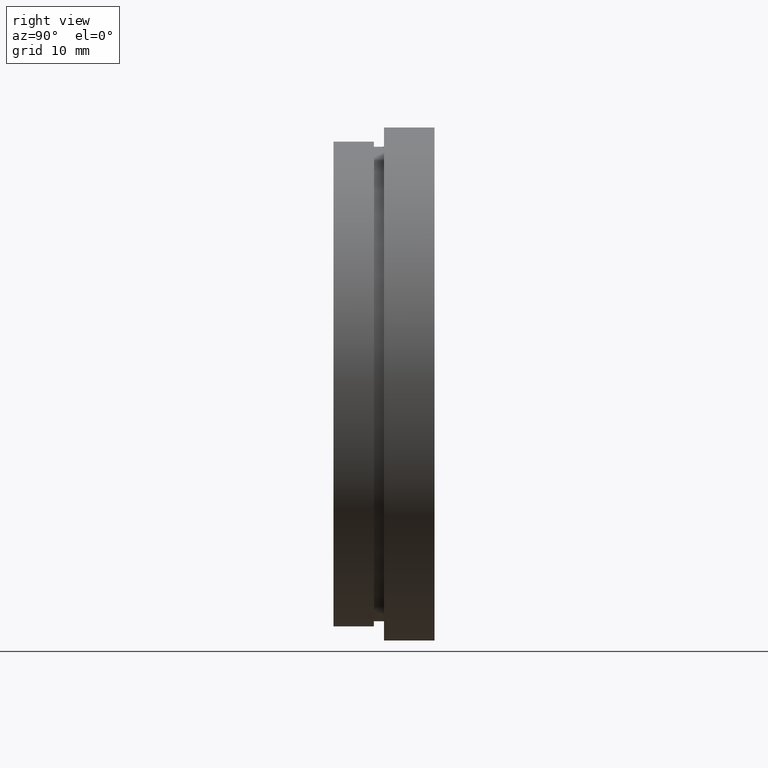
[diagram: clean part render]
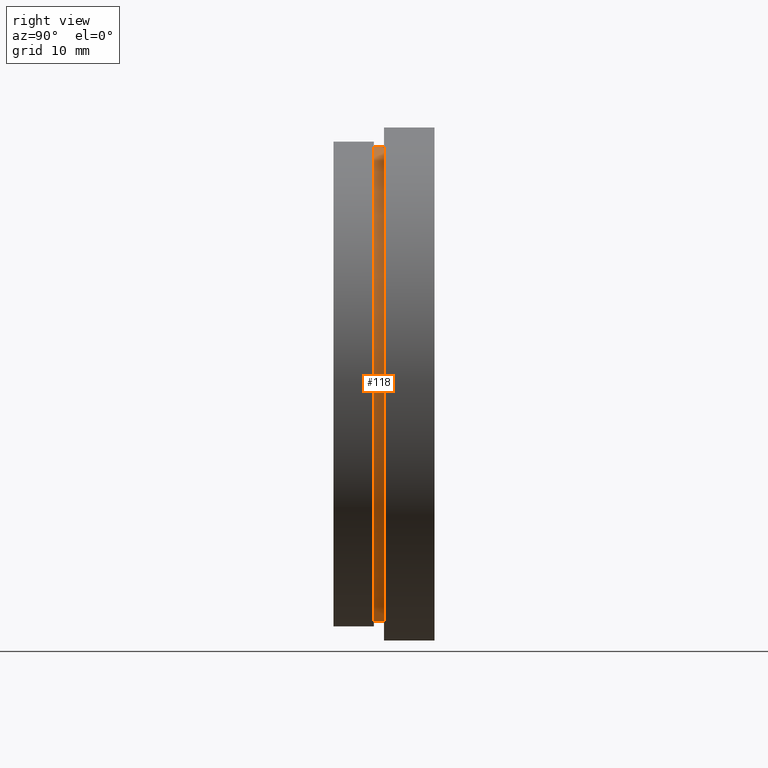
[diagram: same view with one face highlighted and labeled with its STEP entity id]
A machine part, right view. The second image highlights one B-rep face of the part: STEP entity #118.
In plain terms, the highlighted cylindrical surface (partial cylindrical patch) has radius 23.5 mm, axis along (-0, 1, -0).
Its self-contained STEP definition (entity closure, byte-faithful):
#28 = DIRECTION ( 'NONE',  ( -0.0000000000000000000, 1.000000000000000000, -0.0000000000000000000 ) ) ;
#31 = CARTESIAN_POINT ( 'NONE',  ( 0.0000000000000000000, 5.000000000000000900, 0.0000000000000000000 ) ) ;
#34 = CARTESIAN_POINT ( 'NONE',  ( 0.0000000000000000000, 13.74468085106383300, 23.50000000000000000 ) ) ;
#82 = CARTESIAN_POINT ( 'NONE',  ( 2.877919977996280300E-015, 4.000000000000000000, -23.50000000000000000 ) ) ;
#115 = VERTEX_POINT ( 'NONE', #567 ) ;
#118 = ADVANCED_FACE ( 'NONE', ( #564 ), #469, .T. ) ;
#123 = CIRCLE ( 'NONE', #157, 23.50000000000000000 ) ;
#144 = CARTESIAN_POINT ( 'NONE',  ( 0.0000000000000000000, 4.000000000000000000, 0.0000000000000000000 ) ) ;
#157 = AXIS2_PLACEMENT_3D ( 'NONE', #144, #265, #206 ) ;
#163 = ORIENTED_EDGE ( 'NONE', *, *, #277, .T. ) ;
#175 = EDGE_CURVE ( 'NONE', #401, #376, #524, .T. ) ;
#182 = VERTEX_POINT ( 'NONE', #445 ) ;
#187 = ORIENTED_EDGE ( 'NONE', *, *, #175, .T. ) ;
#189 = CARTESIAN_POINT ( 'NONE',  ( 2.877919977996280300E-015, 5.000000000000000900, -23.50000000000000000 ) ) ;
#206 = DIRECTION ( 'NONE',  ( 0.0000000000000000000, 0.0000000000000000000, 1.000000000000000000 ) ) ;
#243 = LINE ( 'NONE', #34, #313 ) ;
#264 = AXIS2_PLACEMENT_3D ( 'NONE', #31, #406, #531 ) ;
#265 = DIRECTION ( 'NONE',  ( -0.0000000000000000000, 1.000000000000000000, -0.0000000000000000000 ) ) ;
#272 = CIRCLE ( 'NONE', #264, 23.50000000000000000 ) ;
#273 = ORIENTED_EDGE ( 'NONE', *, *, #363, .F. ) ;
#277 = EDGE_CURVE ( 'NONE', #182, #401, #123, .T. ) ;
#284 = EDGE_LOOP ( 'NONE', ( #163, #187, #273, #507 ) ) ;
#313 = VECTOR ( 'NONE', #375, 1000.000000000000000 ) ;
#331 = CARTESIAN_POINT ( 'NONE',  ( 2.877919977996280300E-015, 13.74468085106383300, -23.50000000000000000 ) ) ;
#363 = EDGE_CURVE ( 'NONE', #115, #376, #272, .T. ) ;
#375 = DIRECTION ( 'NONE',  ( -0.0000000000000000000, 1.000000000000000000, -0.0000000000000000000 ) ) ;
#376 = VERTEX_POINT ( 'NONE', #189 ) ;
#389 = AXIS2_PLACEMENT_3D ( 'NONE', #584, #557, #517 ) ;
#401 = VERTEX_POINT ( 'NONE', #82 ) ;
#406 = DIRECTION ( 'NONE',  ( -0.0000000000000000000, 1.000000000000000000, -0.0000000000000000000 ) ) ;
#445 = CARTESIAN_POINT ( 'NONE',  ( 0.0000000000000000000, 4.000000000000000000, 23.50000000000000000 ) ) ;
#468 = EDGE_CURVE ( 'NONE', #182, #115, #243, .T. ) ;
#469 = CYLINDRICAL_SURFACE ( 'NONE', #389, 23.50000000000000000 ) ;
#496 = VECTOR ( 'NONE', #28, 1000.000000000000000 ) ;
#507 = ORIENTED_EDGE ( 'NONE', *, *, #468, .F. ) ;
#517 = DIRECTION ( 'NONE',  ( 0.0000000000000000000, 0.0000000000000000000, 1.000000000000000000 ) ) ;
#524 = LINE ( 'NONE', #331, #496 ) ;
#531 = DIRECTION ( 'NONE',  ( 0.0000000000000000000, 0.0000000000000000000, 1.000000000000000000 ) ) ;
#557 = DIRECTION ( 'NONE',  ( -0.0000000000000000000, 1.000000000000000000, -0.0000000000000000000 ) ) ;
#564 = FACE_OUTER_BOUND ( 'NONE', #284, .T. ) ;
#567 = CARTESIAN_POINT ( 'NONE',  ( 0.0000000000000000000, 5.000000000000000900, 23.50000000000000000 ) ) ;
#584 = CARTESIAN_POINT ( 'NONE',  ( 0.0000000000000000000, 13.74468085106383300, 0.0000000000000000000 ) ) ;